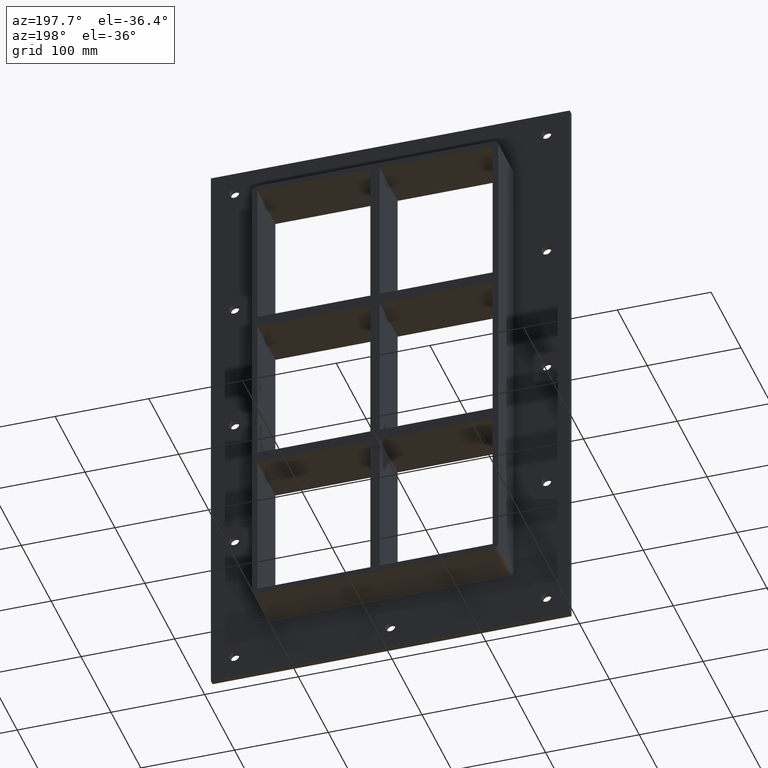
[diagram: clean part render]
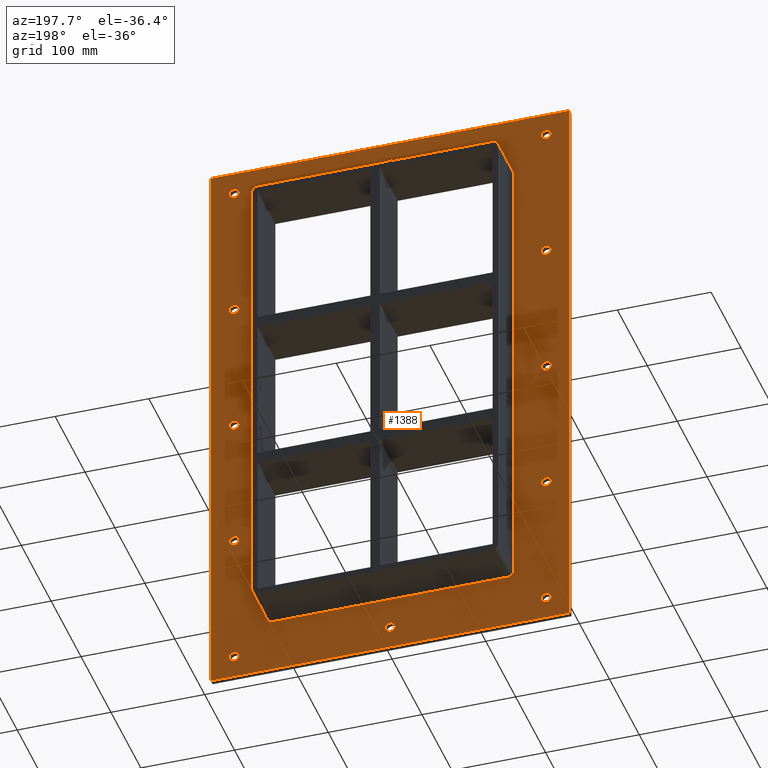
[diagram: same view with one face highlighted and labeled with its STEP entity id]
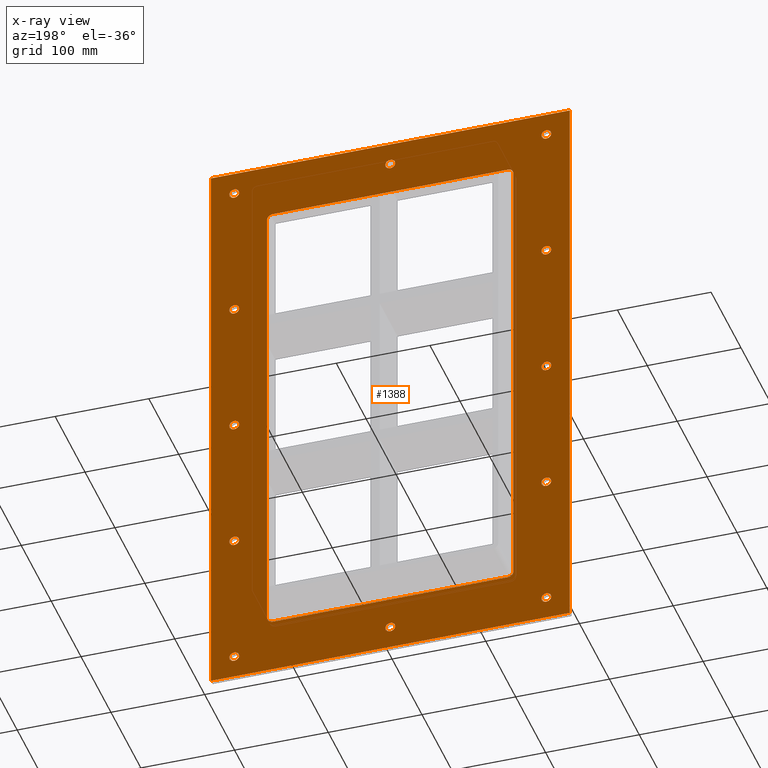
[diagram: x-ray of the same camera — body ghosted, the highlighted face saturated]
A machine part, auxiliary view. The second image highlights one B-rep face of the part: STEP entity #1388.
The next image is the same camera in x-ray: the body ghosted, the highlighted face saturated — about 0% of this face is hidden behind the body in this view.
In plain terms, the highlighted planar face has unit normal (0, 1, 0).
Its self-contained STEP definition (entity closure, byte-faithful):
#73=CARTESIAN_POINT('',(-171.75000000000014,5.999999999999943,-292.25));
#74=VERTEX_POINT('',#73);
#75=CARTESIAN_POINT('',(-166.50000000000017,5.999999999999943,-292.25));
#76=DIRECTION('',(0.0,-1.0,0.0));
#77=DIRECTION('',(1.0,0.0,0.0));
#78=AXIS2_PLACEMENT_3D('',#75,#76,#77);
#79=CIRCLE('',#78,5.25);
#80=EDGE_CURVE('',#74,#74,#79,.T.);
#101=CARTESIAN_POINT('',(161.24999999999989,5.999999999999943,-146.05000000000007));
#102=VERTEX_POINT('',#101);
#103=CARTESIAN_POINT('',(166.49999999999989,5.999999999999943,-146.05000000000007));
#104=DIRECTION('',(0.0,-1.0,0.0));
#105=DIRECTION('',(1.0,0.0,0.0));
#106=AXIS2_PLACEMENT_3D('',#103,#104,#105);
#107=CIRCLE('',#106,5.25);
#108=EDGE_CURVE('',#102,#102,#107,.T.);
#129=CARTESIAN_POINT('',(-171.75000000000014,5.999999999999943,-146.05000000000007));
#130=VERTEX_POINT('',#129);
#131=CARTESIAN_POINT('',(-166.50000000000017,5.999999999999943,-146.05000000000007));
#132=DIRECTION('',(0.0,-1.0,0.0));
#133=DIRECTION('',(1.0,0.0,0.0));
#134=AXIS2_PLACEMENT_3D('',#131,#132,#133);
#135=CIRCLE('',#134,5.25);
#136=EDGE_CURVE('',#130,#130,#135,.T.);
#157=CARTESIAN_POINT('',(161.24999999999989,5.999999999999943,0.14999999999997));
#158=VERTEX_POINT('',#157);
#159=CARTESIAN_POINT('',(166.49999999999989,5.999999999999943,0.14999999999997));
#160=DIRECTION('',(0.0,-1.0,0.0));
#161=DIRECTION('',(1.0,0.0,0.0));
#162=AXIS2_PLACEMENT_3D('',#159,#160,#161);
#163=CIRCLE('',#162,5.25);
#164=EDGE_CURVE('',#158,#158,#163,.T.);
#185=CARTESIAN_POINT('',(-171.75000000000014,5.999999999999943,0.14999999999997));
#186=VERTEX_POINT('',#185);
#187=CARTESIAN_POINT('',(-166.50000000000017,5.999999999999943,0.14999999999997));
#188=DIRECTION('',(0.0,-1.0,0.0));
#189=DIRECTION('',(1.0,0.0,0.0));
#190=AXIS2_PLACEMENT_3D('',#187,#188,#189);
#191=CIRCLE('',#190,5.25);
#192=EDGE_CURVE('',#186,#186,#191,.T.);
#213=CARTESIAN_POINT('',(161.24999999999989,5.999999999999943,146.34999999999997));
#214=VERTEX_POINT('',#213);
#215=CARTESIAN_POINT('',(166.49999999999989,5.999999999999943,146.34999999999997));
#216=DIRECTION('',(0.0,-1.0,0.0));
#217=DIRECTION('',(1.0,0.0,0.0));
#218=AXIS2_PLACEMENT_3D('',#215,#216,#217);
#219=CIRCLE('',#218,5.25);
#220=EDGE_CURVE('',#214,#214,#219,.T.);
#241=CARTESIAN_POINT('',(-171.75000000000014,5.999999999999943,146.34999999999997));
#242=VERTEX_POINT('',#241);
#243=CARTESIAN_POINT('',(-166.50000000000017,5.999999999999943,146.34999999999997));
#244=DIRECTION('',(0.0,-1.0,0.0));
#245=DIRECTION('',(1.0,0.0,0.0));
#246=AXIS2_PLACEMENT_3D('',#243,#244,#245);
#247=CIRCLE('',#246,5.25);
#248=EDGE_CURVE('',#242,#242,#247,.T.);
#269=CARTESIAN_POINT('',(-5.250000000000128,5.999999999999943,292.54999999999995));
#270=VERTEX_POINT('',#269);
#271=CARTESIAN_POINT('',(-1.421085E-013,5.999999999999943,292.54999999999995));
#272=DIRECTION('',(0.0,-1.0,0.0));
#273=DIRECTION('',(1.0,0.0,0.0));
#274=AXIS2_PLACEMENT_3D('',#271,#272,#273);
#275=CIRCLE('',#274,5.25);
#276=EDGE_CURVE('',#270,#270,#275,.T.);
#297=CARTESIAN_POINT('',(-5.250000000000128,5.999999999999943,-292.25));
#298=VERTEX_POINT('',#297);
#299=CARTESIAN_POINT('',(-1.421085E-013,5.999999999999943,-292.25));
#300=DIRECTION('',(0.0,-1.0,0.0));
#301=DIRECTION('',(1.0,0.0,0.0));
#302=AXIS2_PLACEMENT_3D('',#299,#300,#301);
#303=CIRCLE('',#302,5.25);
#304=EDGE_CURVE('',#298,#298,#303,.T.);
#325=CARTESIAN_POINT('',(161.24999999999989,5.999999999999943,-292.25));
#326=VERTEX_POINT('',#325);
#327=CARTESIAN_POINT('',(166.49999999999989,5.999999999999943,-292.25));
#328=DIRECTION('',(0.0,-1.0,0.0));
#329=DIRECTION('',(1.0,0.0,0.0));
#330=AXIS2_PLACEMENT_3D('',#327,#328,#329);
#331=CIRCLE('',#330,5.25);
#332=EDGE_CURVE('',#326,#326,#331,.T.);
#353=CARTESIAN_POINT('',(-171.75000000000014,5.999999999999943,292.54999999999995));
#354=VERTEX_POINT('',#353);
#355=CARTESIAN_POINT('',(-166.50000000000017,5.999999999999943,292.54999999999995));
#356=DIRECTION('',(0.0,-1.0,0.0));
#357=DIRECTION('',(1.0,0.0,0.0));
#358=AXIS2_PLACEMENT_3D('',#355,#356,#357);
#359=CIRCLE('',#358,5.25);
#360=EDGE_CURVE('',#354,#354,#359,.T.);
#381=CARTESIAN_POINT('',(161.24999999999989,5.999999999999943,292.54999999999995));
#382=VERTEX_POINT('',#381);
#383=CARTESIAN_POINT('',(166.49999999999989,5.999999999999943,292.54999999999995));
#384=DIRECTION('',(0.0,-1.0,0.0));
#385=DIRECTION('',(1.0,0.0,0.0));
#386=AXIS2_PLACEMENT_3D('',#383,#384,#385);
#387=CIRCLE('',#386,5.25);
#388=EDGE_CURVE('',#382,#382,#387,.T.);
#1243=CARTESIAN_POINT('',(-1.675973E-014,6.000000000000001,0.0));
#1244=DIRECTION('',(0.0,1.0,0.0));
#1245=DIRECTION('',(0.0,0.0,1.0));
#1246=AXIS2_PLACEMENT_3D('',#1243,#1244,#1245);
#1247=PLANE('',#1246);
#1248=CARTESIAN_POINT('',(-191.50000000000003,6.000000000000001,317.25));
#1249=VERTEX_POINT('',#1248);
#1250=CARTESIAN_POINT('',(191.49999999999994,6.000000000000001,317.25));
#1251=VERTEX_POINT('',#1250);
#1252=CARTESIAN_POINT('',(-191.50000000000003,6.000000000000001,317.25));
#1253=DIRECTION('',(1.0,0.0,0.0));
#1254=VECTOR('',#1253,383.0);
#1255=LINE('',#1252,#1254);
#1256=EDGE_CURVE('',#1249,#1251,#1255,.T.);
#1257=ORIENTED_EDGE('',*,*,#1256,.T.);
#1258=CARTESIAN_POINT('',(191.49999999999994,6.000000000000001,-317.25));
#1259=VERTEX_POINT('',#1258);
#1260=CARTESIAN_POINT('',(191.5,6.000000000000001,317.25));
#1261=DIRECTION('',(0.0,0.0,-1.0));
#1262=VECTOR('',#1261,634.5);
#1263=LINE('',#1260,#1262);
#1264=EDGE_CURVE('',#1251,#1259,#1263,.T.);
#1265=ORIENTED_EDGE('',*,*,#1264,.T.);
#1266=CARTESIAN_POINT('',(-191.50000000000003,6.000000000000001,-317.25));
#1267=VERTEX_POINT('',#1266);
#1268=CARTESIAN_POINT('',(191.5,6.000000000000001,-317.25));
#1269=DIRECTION('',(-1.0,0.0,0.0));
#1270=VECTOR('',#1269,383.0);
#1271=LINE('',#1268,#1270);
#1272=EDGE_CURVE('',#1259,#1267,#1271,.T.);
#1273=ORIENTED_EDGE('',*,*,#1272,.T.);
#1274=CARTESIAN_POINT('',(-191.50000000000003,6.000000000000001,-317.25));
#1275=DIRECTION('',(0.0,0.0,1.0));
#1276=VECTOR('',#1275,634.5);
#1277=LINE('',#1274,#1276);
#1278=EDGE_CURVE('',#1267,#1249,#1277,.T.);
#1279=ORIENTED_EDGE('',*,*,#1278,.T.);
#1280=EDGE_LOOP('',(#1257,#1265,#1273,#1279));
#1281=FACE_OUTER_BOUND('',#1280,.T.);
#1282=ORIENTED_EDGE('',*,*,#80,.T.);
#1283=EDGE_LOOP('',(#1282));
#1284=FACE_BOUND('',#1283,.T.);
#1285=ORIENTED_EDGE('',*,*,#108,.T.);
#1286=EDGE_LOOP('',(#1285));
#1287=FACE_BOUND('',#1286,.T.);
#1288=ORIENTED_EDGE('',*,*,#136,.T.);
#1289=EDGE_LOOP('',(#1288));
#1290=FACE_BOUND('',#1289,.T.);
#1291=ORIENTED_EDGE('',*,*,#164,.T.);
#1292=EDGE_LOOP('',(#1291));
#1293=FACE_BOUND('',#1292,.T.);
#1294=ORIENTED_EDGE('',*,*,#192,.T.);
#1295=EDGE_LOOP('',(#1294));
#1296=FACE_BOUND('',#1295,.T.);
#1297=ORIENTED_EDGE('',*,*,#220,.T.);
#1298=EDGE_LOOP('',(#1297));
#1299=FACE_BOUND('',#1298,.T.);
#1300=ORIENTED_EDGE('',*,*,#248,.T.);
#1301=EDGE_LOOP('',(#1300));
#1302=FACE_BOUND('',#1301,.T.);
#1303=ORIENTED_EDGE('',*,*,#276,.T.);
#1304=EDGE_LOOP('',(#1303));
#1305=FACE_BOUND('',#1304,.T.);
#1306=ORIENTED_EDGE('',*,*,#304,.T.);
#1307=EDGE_LOOP('',(#1306));
#1308=FACE_BOUND('',#1307,.T.);
#1309=ORIENTED_EDGE('',*,*,#332,.T.);
#1310=EDGE_LOOP('',(#1309));
#1311=FACE_BOUND('',#1310,.T.);
#1312=ORIENTED_EDGE('',*,*,#360,.T.);
#1313=EDGE_LOOP('',(#1312));
#1314=FACE_BOUND('',#1313,.T.);
#1315=ORIENTED_EDGE('',*,*,#388,.T.);
#1316=EDGE_LOOP('',(#1315));
#1317=FACE_BOUND('',#1316,.T.);
#1318=CARTESIAN_POINT('',(-125.49999999999997,6.000000000000001,-257.25));
#1319=VERTEX_POINT('',#1318);
#1320=CARTESIAN_POINT('',(-131.5,6.000000000000001,-251.25));
#1321=VERTEX_POINT('',#1320);
#1322=CARTESIAN_POINT('',(-125.49999999999997,6.000000000000001,-251.25));
#1323=DIRECTION('',(0.0,1.0,0.0));
#1324=DIRECTION('',(-0.707106781186548,0.0,-0.707106781186548));
#1325=AXIS2_PLACEMENT_3D('',#1322,#1323,#1324);
#1326=CIRCLE('',#1325,6.000000000000002);
#1327=EDGE_CURVE('',#1319,#1321,#1326,.T.);
#1328=ORIENTED_EDGE('',*,*,#1327,.F.);
#1329=CARTESIAN_POINT('',(125.49999999999997,6.000000000000001,-257.25));
#1330=VERTEX_POINT('',#1329);
#1331=CARTESIAN_POINT('',(125.49999999999997,6.000000000000001,-257.25));
#1332=DIRECTION('',(-1.0,0.0,0.0));
#1333=VECTOR('',#1332,250.99999999999994);
#1334=LINE('',#1331,#1333);
#1335=EDGE_CURVE('',#1330,#1319,#1334,.T.);
#1336=ORIENTED_EDGE('',*,*,#1335,.F.);
#1337=CARTESIAN_POINT('',(131.5,6.000000000000001,-251.25));
#1338=VERTEX_POINT('',#1337);
#1339=CARTESIAN_POINT('',(125.49999999999997,6.000000000000001,-251.25));
#1340=DIRECTION('',(0.0,1.0,0.0));
#1341=DIRECTION('',(0.707106781186548,0.0,-0.707106781186548));
#1342=AXIS2_PLACEMENT_3D('',#1339,#1340,#1341);
#1343=CIRCLE('',#1342,6.000000000000002);
#1344=EDGE_CURVE('',#1338,#1330,#1343,.T.);
#1345=ORIENTED_EDGE('',*,*,#1344,.F.);
#1346=CARTESIAN_POINT('',(131.5,6.000000000000001,251.25));
#1347=VERTEX_POINT('',#1346);
#1348=CARTESIAN_POINT('',(131.5,6.000000000000001,251.25));
#1349=DIRECTION('',(0.0,0.0,-1.0));
#1350=VECTOR('',#1349,502.5);
#1351=LINE('',#1348,#1350);
#1352=EDGE_CURVE('',#1347,#1338,#1351,.T.);
#1353=ORIENTED_EDGE('',*,*,#1352,.F.);
#1354=CARTESIAN_POINT('',(125.49999999999997,6.000000000000001,257.25));
#1355=VERTEX_POINT('',#1354);
#1356=CARTESIAN_POINT('',(125.49999999999997,6.000000000000001,251.25));
#1357=DIRECTION('',(0.0,1.0,0.0));
#1358=DIRECTION('',(0.707106781186548,0.0,0.707106781186548));
#1359=AXIS2_PLACEMENT_3D('',#1356,#1357,#1358);
#1360=CIRCLE('',#1359,6.000000000000002);
#1361=EDGE_CURVE('',#1355,#1347,#1360,.T.);
#1362=ORIENTED_EDGE('',*,*,#1361,.F.);
#1363=CARTESIAN_POINT('',(-125.49999999999997,6.000000000000001,257.25));
#1364=VERTEX_POINT('',#1363);
#1365=CARTESIAN_POINT('',(-125.49999999999997,6.000000000000001,257.25));
#1366=DIRECTION('',(1.0,0.0,0.0));
#1367=VECTOR('',#1366,250.99999999999994);
#1368=LINE('',#1365,#1367);
#1369=EDGE_CURVE('',#1364,#1355,#1368,.T.);
#1370=ORIENTED_EDGE('',*,*,#1369,.F.);
#1371=CARTESIAN_POINT('',(-131.5,6.000000000000001,251.25));
#1372=VERTEX_POINT('',#1371);
#1373=CARTESIAN_POINT('',(-125.49999999999997,6.000000000000001,251.25));
#1374=DIRECTION('',(0.0,1.0,0.0));
#1375=DIRECTION('',(-0.707106781186548,0.0,0.707106781186548));
#1376=AXIS2_PLACEMENT_3D('',#1373,#1374,#1375);
#1377=CIRCLE('',#1376,6.000000000000002);
#1378=EDGE_CURVE('',#1372,#1364,#1377,.T.);
#1379=ORIENTED_EDGE('',*,*,#1378,.F.);
#1380=CARTESIAN_POINT('',(-131.5,6.000000000000001,-251.25));
#1381=DIRECTION('',(0.0,0.0,1.0));
#1382=VECTOR('',#1381,502.5);
#1383=LINE('',#1380,#1382);
#1384=EDGE_CURVE('',#1321,#1372,#1383,.T.);
#1385=ORIENTED_EDGE('',*,*,#1384,.F.);
#1386=EDGE_LOOP('',(#1328,#1336,#1345,#1353,#1362,#1370,#1379,#1385));
#1387=FACE_BOUND('',#1386,.T.);
#1388=ADVANCED_FACE('',(#1281,#1284,#1287,#1290,#1293,#1296,#1299,#1302,#1305,#1308,#1311,#1314,#1317,#1387),#1247,.T.);